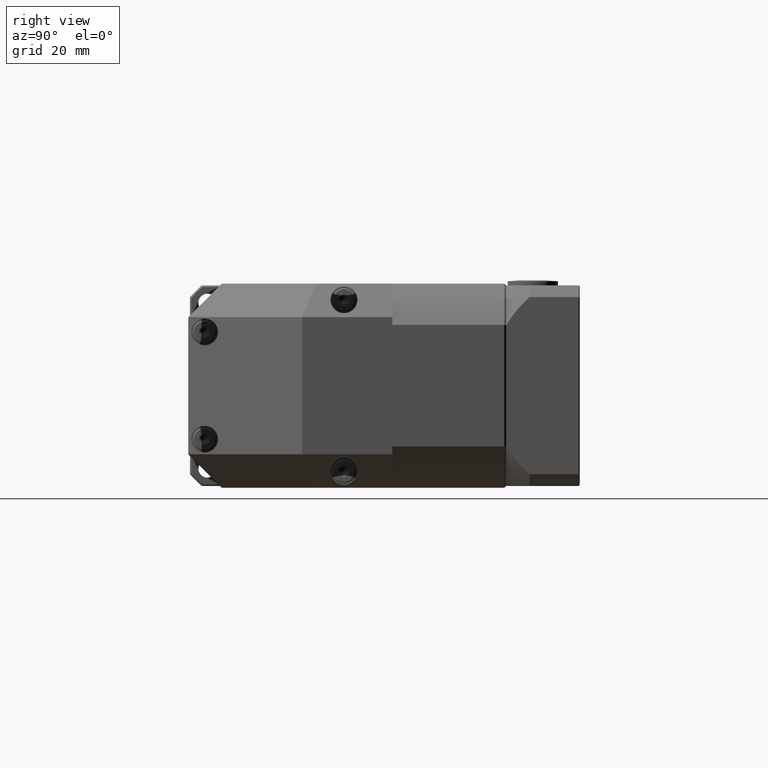
[diagram: clean part render]
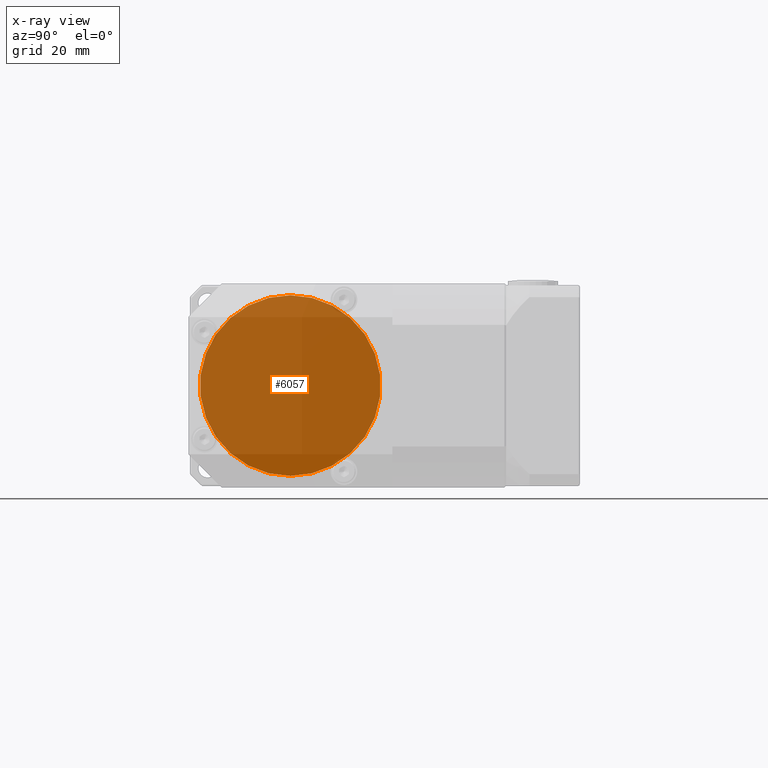
[diagram: x-ray — body ghosted, one internal face saturated and labeled with its STEP entity id]
A machine part, right view, then the same camera in x-ray: the body is ghosted and one INTERNAL B-rep face — a face not visible from any outside direction — is saturated and labeled: STEP entity #6057.
In plain terms, the highlighted planar face has unit normal (1, 0, 0).
Its self-contained STEP definition (entity closure, byte-faithful):
#1049=PLANE('',#6728);
#1589=FACE_OUTER_BOUND('',#2145,.T.);
#2145=EDGE_LOOP('',(#4974));
#2465=CIRCLE('',#6727,27.);
#2942=VERTEX_POINT('',#10307);
#3637=EDGE_CURVE('',#2942,#2942,#2465,.T.);
#4974=ORIENTED_EDGE('',*,*,#3637,.F.);
#6057=ADVANCED_FACE('',(#1589),#1049,.T.);
#6727=AXIS2_PLACEMENT_3D('',#10308,#8261,#8262);
#6728=AXIS2_PLACEMENT_3D('',#10309,#8263,#8264);
#8261=DIRECTION('center_axis',(-1.,-1.62717062046624E-15,-3.12419122741346E-15));
#8262=DIRECTION('ref_axis',(-3.12419122741346E-15,5.8677021574955E-16,1.));
#8263=DIRECTION('center_axis',(1.,1.62717062046624E-15,3.12419122741346E-15));
#8264=DIRECTION('ref_axis',(3.13082892944294E-15,-7.105427357601E-16,-1.));
#10307=CARTESIAN_POINT('',(1.4079195786631,48.1548138820486,-24.6163494325934));
#10308=CARTESIAN_POINT('Origin',(1.40791957866301,48.1548138820486,2.38365056740657));
#10309=CARTESIAN_POINT('Origin',(1.40791957866301,48.1548138820486,2.38365056740657));